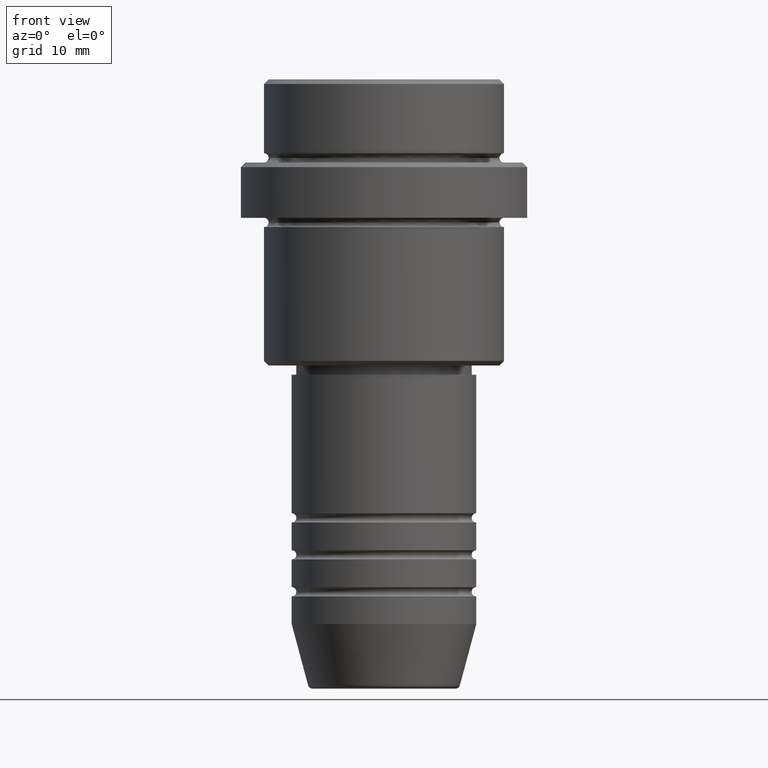
[diagram: clean part render]
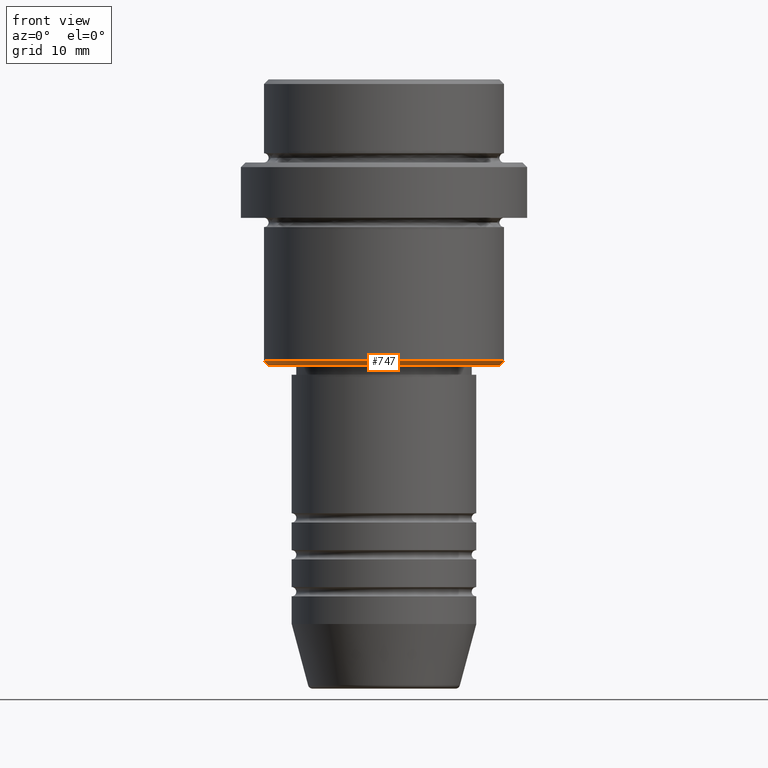
[diagram: same view with one face highlighted and labeled with its STEP entity id]
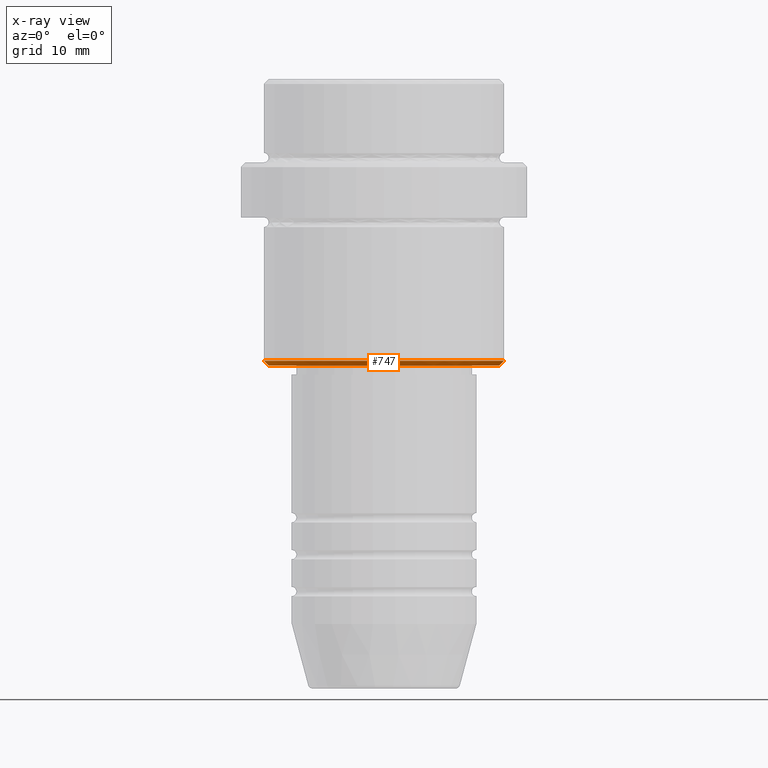
[diagram: x-ray of the same camera — body ghosted, the highlighted face saturated]
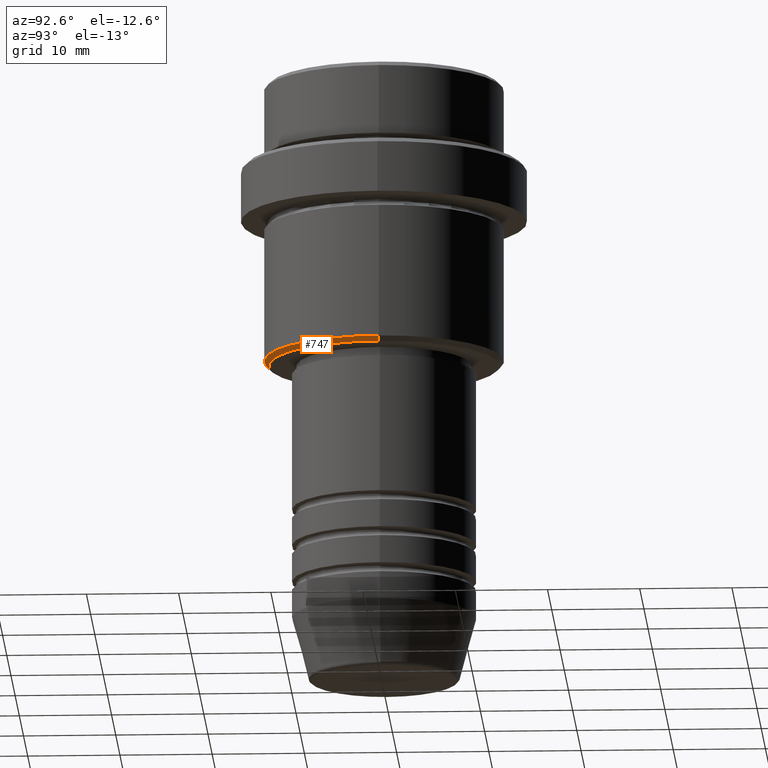
[diagram: same view with one face highlighted and labeled with its STEP entity id]
A machine part, front view. The second image highlights one B-rep face of the part: STEP entity #747.
The next image is the same camera in x-ray: the body ghosted, the highlighted face saturated — about 0% of this face is hidden behind the body in this view.
A second angle (auxiliary view) of the same face is appended — the face is thin or edge-on in the first view.
In plain terms, the highlighted conical surface has half-angle 45 deg.
Its self-contained STEP definition (entity closure, byte-faithful):
#52 = ORIENTED_EDGE ( 'NONE', *, *, #573, .F. ) ;
#58 = CARTESIAN_POINT ( 'NONE',  ( 0.000000000000000000, 0.000000000000000000, -30.49999999999998579 ) ) ;
#72 = CARTESIAN_POINT ( 'NONE',  ( 0.000000000000000000, 0.000000000000000000, -31.00000000000000000 ) ) ;
#154 = EDGE_CURVE ( 'NONE', #869, #1017, #214, .T. ) ;
#184 = DIRECTION ( 'NONE',  ( 0.000000000000000000, 0.000000000000000000, -1.000000000000000000 ) ) ;
#214 = CIRCLE ( 'NONE', #436, 12.49999999999998401 ) ;
#253 = CARTESIAN_POINT ( 'NONE',  ( -13.00000000000000000, 1.592040838891559095E-15, -30.49999999999998579 ) ) ;
#287 = DIRECTION ( 'NONE',  ( -1.000000000000000000, 0.000000000000000000, 0.000000000000000000 ) ) ;
#308 = CARTESIAN_POINT ( 'NONE',  ( 0.000000000000000000, 0.000000000000000000, -30.49999999999998579 ) ) ;
#352 = EDGE_LOOP ( 'NONE', ( #52, #1041, #1273, #1164 ) ) ;
#408 = VERTEX_POINT ( 'NONE', #1349 ) ;
#430 = DIRECTION ( 'NONE',  ( -0.000000000000000000, -0.000000000000000000, 1.000000000000000000 ) ) ;
#436 = AXIS2_PLACEMENT_3D ( 'NONE', #72, #184, #287 ) ;
#482 = CARTESIAN_POINT ( 'NONE',  ( -13.00000000000000000, 1.592040838891559095E-15, -30.49999999999998579 ) ) ;
#486 = VECTOR ( 'NONE', #608, 1000.000000000000000 ) ;
#558 = CARTESIAN_POINT ( 'NONE',  ( 13.00000000000000000, 0.000000000000000000, -30.49999999999998579 ) ) ;
#573 = EDGE_CURVE ( 'NONE', #1017, #799, #959, .T. ) ;
#583 = CIRCLE ( 'NONE', #821, 13.00000000000000000 ) ;
#608 = DIRECTION ( 'NONE',  ( -0.7071067811865487940, 8.659560562354948882E-17, 0.7071067811865463515 ) ) ;
#747 = ADVANCED_FACE ( 'NONE', ( #1414 ), #934, .T. ) ;
#799 = VERTEX_POINT ( 'NONE', #253 ) ;
#803 = DIRECTION ( 'NONE',  ( -1.000000000000000000, 0.000000000000000000, 0.000000000000000000 ) ) ;
#821 = AXIS2_PLACEMENT_3D ( 'NONE', #58, #1040, #803 ) ;
#869 = VERTEX_POINT ( 'NONE', #1348 ) ;
#910 = AXIS2_PLACEMENT_3D ( 'NONE', #308, #430, #1296 ) ;
#934 = CONICAL_SURFACE ( 'NONE', #910, 13.00000000000000000, 0.7853981633974500554 ) ;
#949 = CARTESIAN_POINT ( 'NONE',  ( -12.49999999999998401, 1.561424668912874125E-15, -31.00000000000000000 ) ) ;
#959 = LINE ( 'NONE', #482, #486 ) ;
#1017 = VERTEX_POINT ( 'NONE', #949 ) ;
#1040 = DIRECTION ( 'NONE',  ( -0.000000000000000000, -0.000000000000000000, 1.000000000000000000 ) ) ;
#1041 = ORIENTED_EDGE ( 'NONE', *, *, #154, .F. ) ;
#1103 = EDGE_CURVE ( 'NONE', #869, #408, #1301, .T. ) ;
#1160 = VECTOR ( 'NONE', #1214, 1000.000000000000000 ) ;
#1164 = ORIENTED_EDGE ( 'NONE', *, *, #1282, .F. ) ;
#1214 = DIRECTION ( 'NONE',  ( 0.7071067811865487940, 0.000000000000000000, 0.7071067811865463515 ) ) ;
#1273 = ORIENTED_EDGE ( 'NONE', *, *, #1103, .T. ) ;
#1282 = EDGE_CURVE ( 'NONE', #799, #408, #583, .T. ) ;
#1296 = DIRECTION ( 'NONE',  ( 1.000000000000000000, 0.000000000000000000, 0.000000000000000000 ) ) ;
#1301 = LINE ( 'NONE', #558, #1160 ) ;
#1348 = CARTESIAN_POINT ( 'NONE',  ( 12.49999999999998401, 0.000000000000000000, -31.00000000000000000 ) ) ;
#1349 = CARTESIAN_POINT ( 'NONE',  ( 13.00000000000000000, 0.000000000000000000, -30.49999999999998579 ) ) ;
#1414 = FACE_OUTER_BOUND ( 'NONE', #352, .T. ) ;